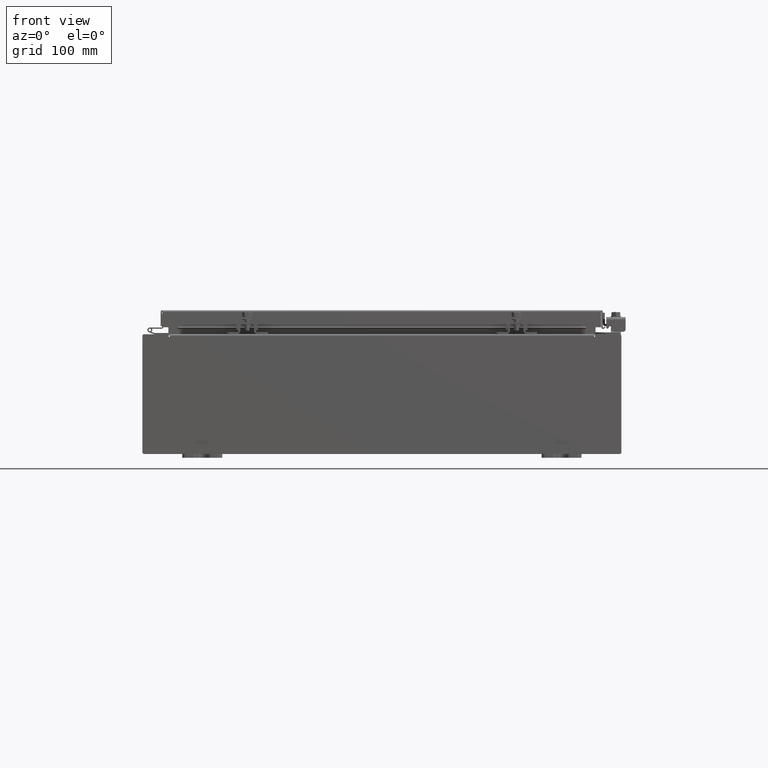
[diagram: clean part render]
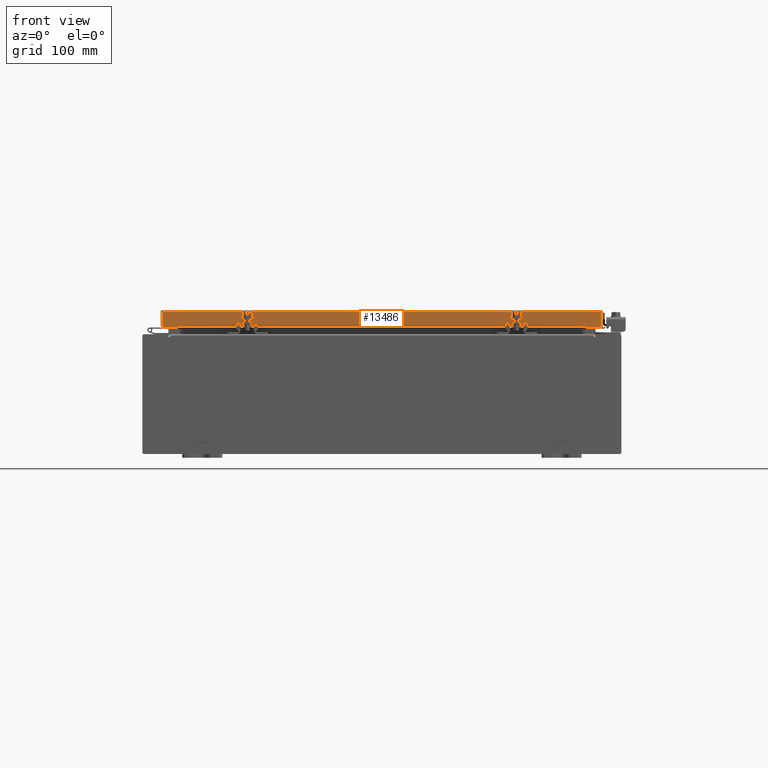
[diagram: same view with one face highlighted and labeled with its STEP entity id]
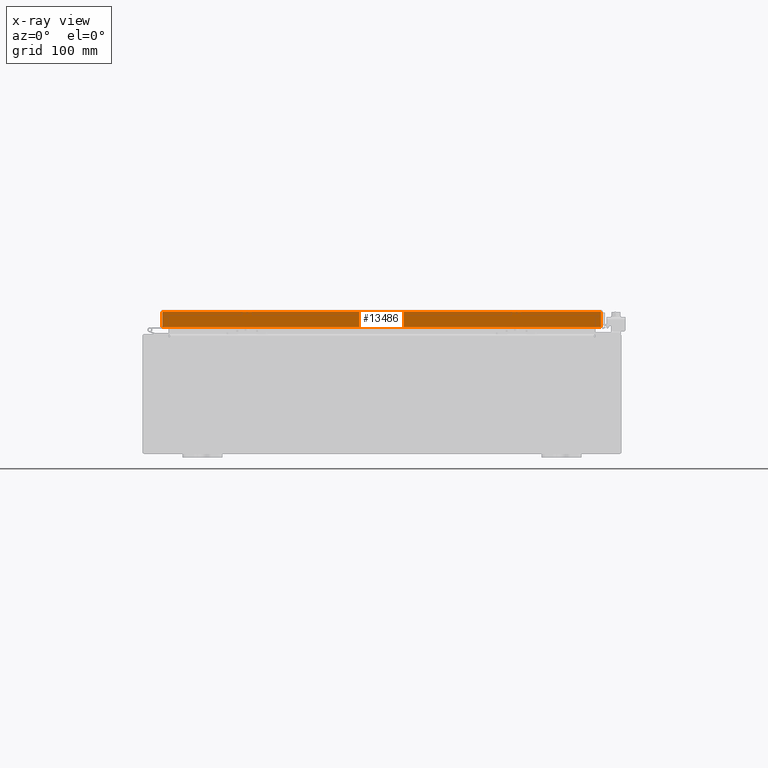
[diagram: x-ray of the same camera — body ghosted, the highlighted face saturated]
A machine part, front view. The second image highlights one B-rep face of the part: STEP entity #13486.
The next image is the same camera in x-ray: the body ghosted, the highlighted face saturated — about 0% of this face is hidden behind the body in this view.
In plain terms, the highlighted planar face has unit normal (-0, 1, -0).
Its self-contained STEP definition (entity closure, byte-faithful):
#551 = VERTEX_POINT ( 'NONE', #9180 ) ;
#585 = CARTESIAN_POINT ( 'NONE',  ( 10.98915786437626400, -11.09400000000000300, -0.8499999999999996400 ) ) ;
#855 = CARTESIAN_POINT ( 'NONE',  ( 10.98915786437626400, -11.09400000000000100, -0.08769999999999897300 ) ) ;
#999 = ORIENTED_EDGE ( 'NONE', *, *, #7910, .T. ) ;
#3620 = ORIENTED_EDGE ( 'NONE', *, *, #31549, .F. ) ;
#3726 = CARTESIAN_POINT ( 'NONE',  ( 11.07799999999999600, -11.09400000000000300, -0.8499999999999996400 ) ) ;
#4120 = DIRECTION ( 'NONE',  ( 1.000000000000000000, 6.951393977153911800E-032, -9.864047639156036200E-017 ) ) ;
#4274 = DIRECTION ( 'NONE',  ( -3.475696988576954900E-031, 1.000000000000000000, -2.818880942772360500E-015 ) ) ;
#4952 = EDGE_CURVE ( 'NONE', #22521, #551, #9172, .T. ) ;
#5551 = EDGE_CURVE ( 'NONE', #16210, #22521, #5664, .T. ) ;
#5664 = LINE ( 'NONE', #23283, #31512 ) ;
#5892 = ORIENTED_EDGE ( 'NONE', *, *, #30407, .F. ) ;
#7281 = VECTOR ( 'NONE', #18758, 39.37007874015748100 ) ;
#7910 = EDGE_CURVE ( 'NONE', #16098, #14019, #27031, .T. ) ;
#8266 = PLANE ( 'NONE',  #32411 ) ;
#8920 = VECTOR ( 'NONE', #15354, 39.37007874015748100 ) ;
#9172 = LINE ( 'NONE', #18621, #29957 ) ;
#9180 = CARTESIAN_POINT ( 'NONE',  ( 10.23915786437625800, -11.09400000000000100, -0.8500000000000023100 ) ) ;
#10412 = CARTESIAN_POINT ( 'NONE',  ( -10.98915786437627200, -11.09400000000000100, -0.08769999999999787700 ) ) ;
#12731 = CARTESIAN_POINT ( 'NONE',  ( 10.23915786437626200, -11.09400000000000100, -0.8500000000000023100 ) ) ;
#13321 = DIRECTION ( 'NONE',  ( -0.0000000000000000000, -2.818880942772360500E-015, -1.000000000000000000 ) ) ;
#13486 = ADVANCED_FACE ( 'NONE', ( #29394 ), #8266, .F. ) ;
#13737 = VECTOR ( 'NONE', #20979, 39.37007874015748100 ) ;
#14019 = VERTEX_POINT ( 'NONE', #26471 ) ;
#15354 = DIRECTION ( 'NONE',  ( -1.000000000000000000, 0.0000000000000000000, 0.0000000000000000000 ) ) ;
#15445 = EDGE_CURVE ( 'NONE', #551, #20707, #15590, .T. ) ;
#15590 = LINE ( 'NONE', #12731, #8920 ) ;
#16098 = VERTEX_POINT ( 'NONE', #10412 ) ;
#16210 = VERTEX_POINT ( 'NONE', #855 ) ;
#18621 = CARTESIAN_POINT ( 'NONE',  ( 11.07799999999999600, -11.09400000000000300, -0.8499999999999996400 ) ) ;
#18758 = DIRECTION ( 'NONE',  ( -1.000000000000000000, 4.379057701015053300E-047, 1.233005954894504400E-016 ) ) ;
#19984 = EDGE_LOOP ( 'NONE', ( #5892, #999, #3620, #28419, #25839, #28924 ) ) ;
#20707 = VERTEX_POINT ( 'NONE', #25884 ) ;
#20979 = DIRECTION ( 'NONE',  ( 0.0000000000000000000, -2.818880942772360500E-015, -1.000000000000000000 ) ) ;
#21658 = CARTESIAN_POINT ( 'NONE',  ( 11.07799999999999600, -11.09400000000000100, -0.08770000000000007000 ) ) ;
#21813 = DIRECTION ( 'NONE',  ( 0.0000000000000000000, 2.818880942772360500E-015, 1.000000000000000000 ) ) ;
#22521 = VERTEX_POINT ( 'NONE', #585 ) ;
#23283 = CARTESIAN_POINT ( 'NONE',  ( 10.98915786437626400, -11.09400000000000100, -0.07469999999999978000 ) ) ;
#23469 = CARTESIAN_POINT ( 'NONE',  ( -10.98915786437626900, -11.09400000000000100, 3.153347883512815000E-014 ) ) ;
#25839 = ORIENTED_EDGE ( 'NONE', *, *, #4952, .F. ) ;
#25884 = CARTESIAN_POINT ( 'NONE',  ( -10.23915786437627100, -11.09400000000000100, -0.8500000000000023100 ) ) ;
#26045 = DIRECTION ( 'NONE',  ( -1.000000000000000000, 4.379057701015053300E-047, 1.233005954894504400E-016 ) ) ;
#26162 = LINE ( 'NONE', #21658, #27741 ) ;
#26471 = CARTESIAN_POINT ( 'NONE',  ( -10.98915786437627200, -11.09400000000000300, -0.8499999999999969800 ) ) ;
#26901 = CARTESIAN_POINT ( 'NONE',  ( 3.855938239127274300E-030, -11.09400000000000100, 3.153347883512815000E-014 ) ) ;
#27031 = LINE ( 'NONE', #23469, #13737 ) ;
#27258 = LINE ( 'NONE', #3726, #7281 ) ;
#27741 = VECTOR ( 'NONE', #4120, 39.37007874015748100 ) ;
#28419 = ORIENTED_EDGE ( 'NONE', *, *, #15445, .F. ) ;
#28924 = ORIENTED_EDGE ( 'NONE', *, *, #5551, .F. ) ;
#29394 = FACE_OUTER_BOUND ( 'NONE', #19984, .T. ) ;
#29957 = VECTOR ( 'NONE', #26045, 39.37007874015748100 ) ;
#30407 = EDGE_CURVE ( 'NONE', #16098, #16210, #26162, .T. ) ;
#31512 = VECTOR ( 'NONE', #13321, 39.37007874015748100 ) ;
#31549 = EDGE_CURVE ( 'NONE', #20707, #14019, #27258, .T. ) ;
#32411 = AXIS2_PLACEMENT_3D ( 'NONE', #26901, #4274, #21813 ) ;